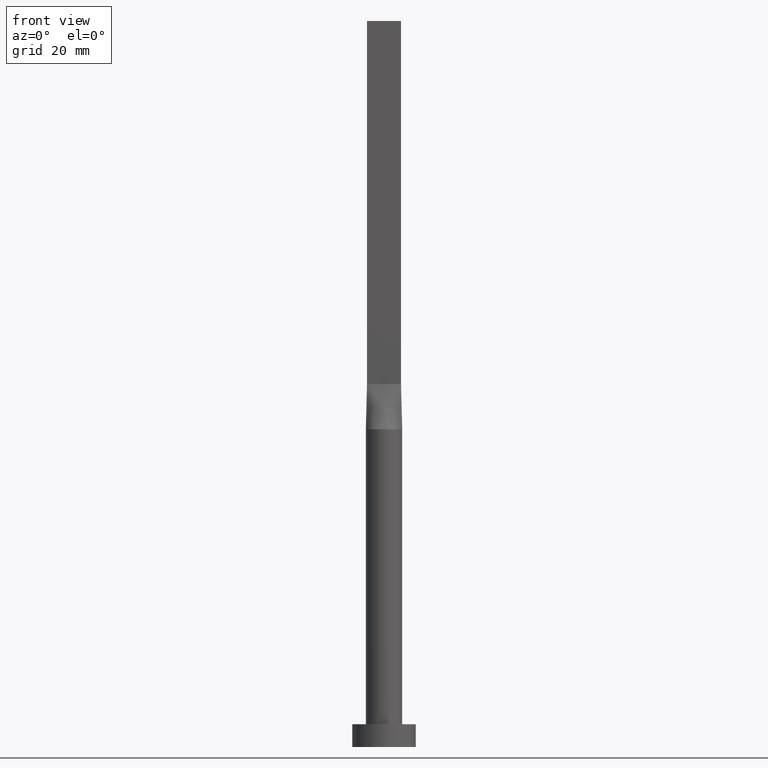
[diagram: clean part render]
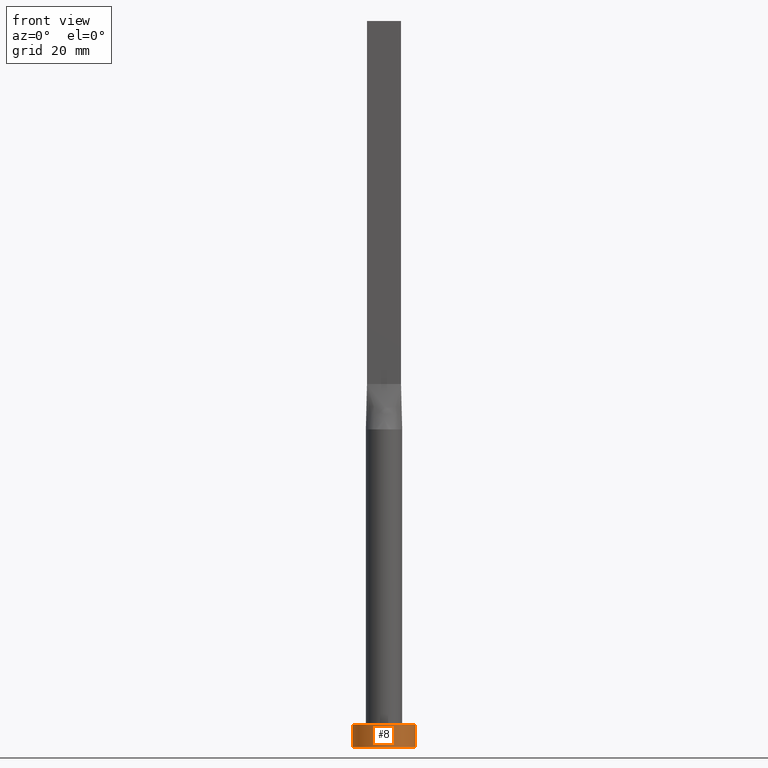
[diagram: same view with one face highlighted and labeled with its STEP entity id]
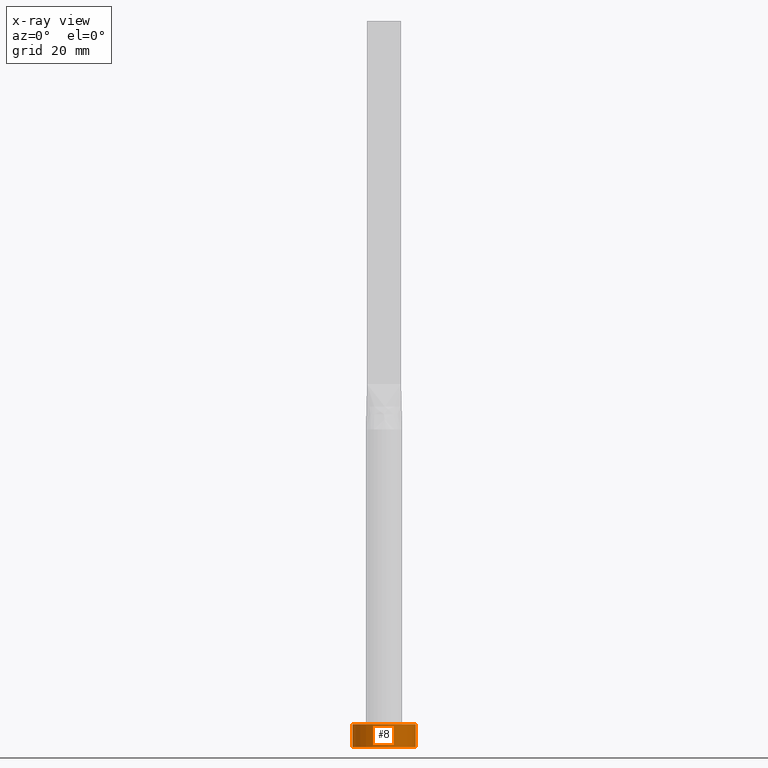
[diagram: x-ray of the same camera — body ghosted, the highlighted face saturated]
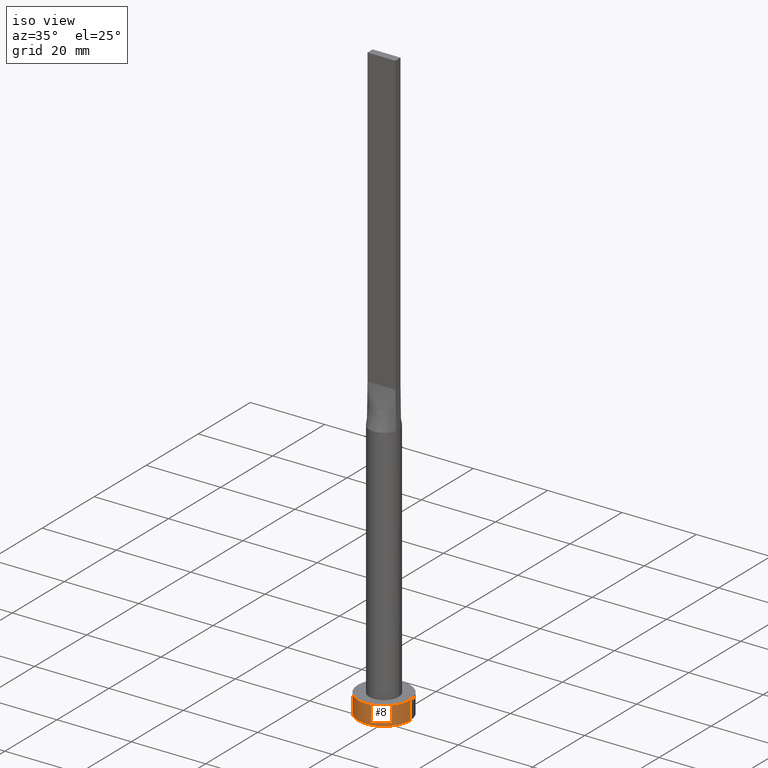
[diagram: same view with one face highlighted and labeled with its STEP entity id]
A machine part, front view. The second image highlights one B-rep face of the part: STEP entity #8.
The next image is the same camera in x-ray: the body ghosted, the highlighted face saturated — about 0% of this face is hidden behind the body in this view.
A second angle (iso view) of the same face is appended — the face is thin or edge-on in the first view.
In plain terms, the highlighted cylindrical surface (edge-blend (fillet) strip) has radius 7 mm, axis along (-0, -0, -1).
Its self-contained STEP definition (entity closure, byte-faithful):
#8 = ADVANCED_FACE ( 'NONE', ( #510 ), #55, .T. ) ;
#15 = CARTESIAN_POINT ( 'NONE',  ( 0.000000000000000000, 0.000000000000000000, 5.000000000000000000 ) ) ;
#28 = ORIENTED_EDGE ( 'NONE', *, *, #254, .F. ) ;
#39 = ORIENTED_EDGE ( 'NONE', *, *, #181, .T. ) ;
#55 = CYLINDRICAL_SURFACE ( 'NONE', #98, 7.000000000000000000 ) ;
#59 = DIRECTION ( 'NONE',  ( -0.000000000000000000, -0.000000000000000000, -1.000000000000000000 ) ) ;
#88 = AXIS2_PLACEMENT_3D ( 'NONE', #525, #161, #340 ) ;
#89 = VERTEX_POINT ( 'NONE', #365 ) ;
#94 = VERTEX_POINT ( 'NONE', #195 ) ;
#98 = AXIS2_PLACEMENT_3D ( 'NONE', #15, #280, #551 ) ;
#123 = CARTESIAN_POINT ( 'NONE',  ( 7.000000000000000000, 8.572527594031473190E-16, 0.000000000000000000 ) ) ;
#129 = ORIENTED_EDGE ( 'NONE', *, *, #317, .T. ) ;
#143 = AXIS2_PLACEMENT_3D ( 'NONE', #357, #546, #462 ) ;
#161 = DIRECTION ( 'NONE',  ( 0.000000000000000000, 0.000000000000000000, 1.000000000000000000 ) ) ;
#181 = EDGE_CURVE ( 'NONE', #562, #89, #517, .T. ) ;
#191 = VECTOR ( 'NONE', #441, 1000.000000000000000 ) ;
#194 = VECTOR ( 'NONE', #59, 1000.000000000000000 ) ;
#195 = CARTESIAN_POINT ( 'NONE',  ( 7.000000000000000000, 8.572527594031473190E-16, 5.000000000000000000 ) ) ;
#254 = EDGE_CURVE ( 'NONE', #562, #94, #414, .T. ) ;
#257 = ORIENTED_EDGE ( 'NONE', *, *, #529, .F. ) ;
#280 = DIRECTION ( 'NONE',  ( -0.000000000000000000, -0.000000000000000000, -1.000000000000000000 ) ) ;
#296 = CARTESIAN_POINT ( 'NONE',  ( -7.000000000000000000, 0.000000000000000000, 5.000000000000000000 ) ) ;
#317 = EDGE_CURVE ( 'NONE', #89, #539, #338, .T. ) ;
#337 = CARTESIAN_POINT ( 'NONE',  ( 7.000000000000000000, 8.572527594031473190E-16, 5.000000000000000000 ) ) ;
#338 = CIRCLE ( 'NONE', #143, 7.000000000000000000 ) ;
#340 = DIRECTION ( 'NONE',  ( 1.000000000000000000, 0.000000000000000000, 0.000000000000000000 ) ) ;
#355 = EDGE_LOOP ( 'NONE', ( #257, #28, #39, #129 ) ) ;
#357 = CARTESIAN_POINT ( 'NONE',  ( 0.000000000000000000, 0.000000000000000000, 0.000000000000000000 ) ) ;
#365 = CARTESIAN_POINT ( 'NONE',  ( -7.000000000000000000, 0.000000000000000000, 0.000000000000000000 ) ) ;
#414 = CIRCLE ( 'NONE', #88, 7.000000000000000000 ) ;
#441 = DIRECTION ( 'NONE',  ( -0.000000000000000000, -0.000000000000000000, -1.000000000000000000 ) ) ;
#442 = LINE ( 'NONE', #337, #191 ) ;
#462 = DIRECTION ( 'NONE',  ( 1.000000000000000000, 0.000000000000000000, 0.000000000000000000 ) ) ;
#472 = CARTESIAN_POINT ( 'NONE',  ( -7.000000000000000000, 0.000000000000000000, 5.000000000000000000 ) ) ;
#510 = FACE_OUTER_BOUND ( 'NONE', #355, .T. ) ;
#517 = LINE ( 'NONE', #472, #194 ) ;
#525 = CARTESIAN_POINT ( 'NONE',  ( 0.000000000000000000, 0.000000000000000000, 5.000000000000000000 ) ) ;
#529 = EDGE_CURVE ( 'NONE', #94, #539, #442, .T. ) ;
#539 = VERTEX_POINT ( 'NONE', #123 ) ;
#546 = DIRECTION ( 'NONE',  ( 0.000000000000000000, 0.000000000000000000, 1.000000000000000000 ) ) ;
#551 = DIRECTION ( 'NONE',  ( -1.000000000000000000, 0.000000000000000000, 0.000000000000000000 ) ) ;
#562 = VERTEX_POINT ( 'NONE', #296 ) ;